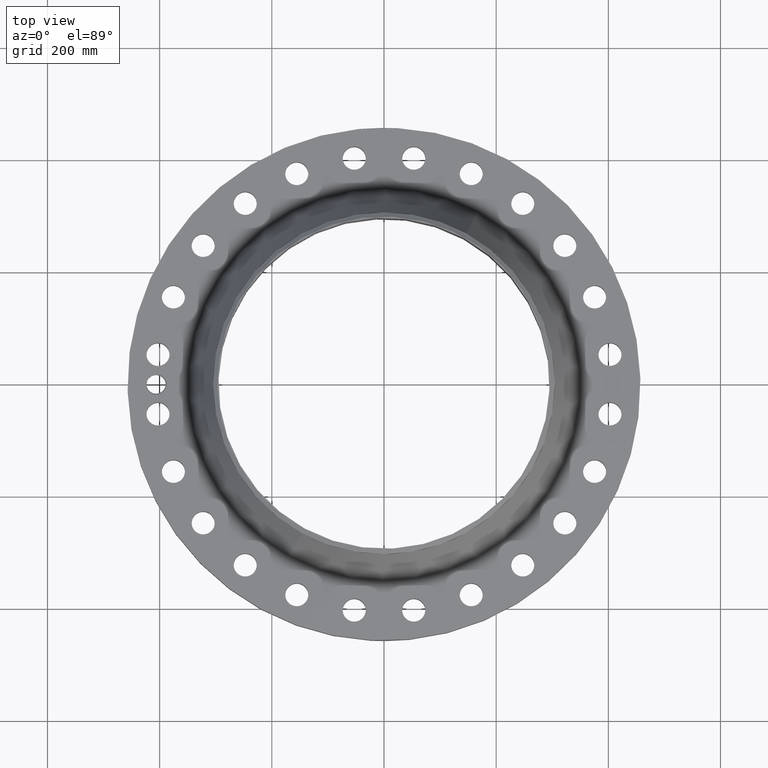
[diagram: clean part render]
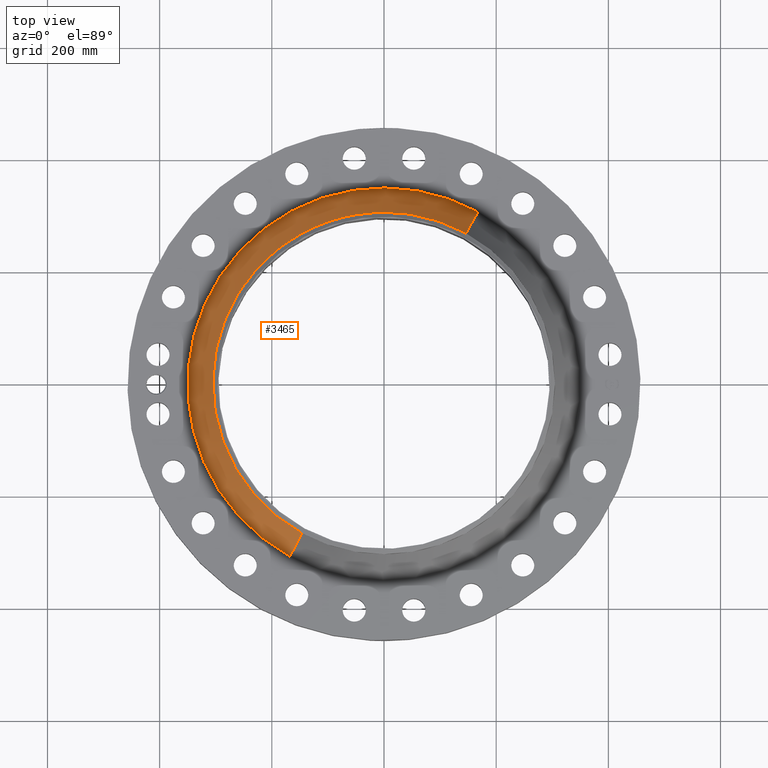
[diagram: same view with one face highlighted and labeled with its STEP entity id]
A machine part, top view. The second image highlights one B-rep face of the part: STEP entity #3465.
In plain terms, the highlighted conical surface has half-angle 27.984 deg.
Its self-contained STEP definition (entity closure, byte-faithful):
#2817=AXIS2_PLACEMENT_3D('Circle Axis2P3D',#2815,#2816,$) ;
#3426=AXIS2_PLACEMENT_3D('Cone Axis2P3D',#3423,#3424,#3425) ;
#3456=AXIS2_PLACEMENT_3D('Circle Axis2P3D',#3454,#3455,$) ;
#2793=CARTESIAN_POINT('Vertex',(6.6046413798,12.089714952,2.87369354348)) ;
#2800=CARTESIAN_POINT('Vertex',(-6.6046413798,-12.089714952,2.87369354348)) ;
#2815=CARTESIAN_POINT('Axis2P3D Location',(0.,0.,2.87369354348)) ;
#3423=CARTESIAN_POINT('Axis2P3D Location',(0.,0.,6.21645135496)) ;
#3428=CARTESIAN_POINT('Line Origine',(6.17887392154,11.3103528474,4.54507244922)) ;
#3432=CARTESIAN_POINT('Vertex',(5.75310646327,10.5309907427,6.21645135496)) ;
#3439=CARTESIAN_POINT('Vertex',(-5.75310646327,-10.5309907427,6.21645135496)) ;
#3442=CARTESIAN_POINT('Line Origine',(-6.17887392154,-11.3103528474,4.54507244922)) ;
#3454=CARTESIAN_POINT('Axis2P3D Location',(0.,0.,6.21645135496)) ;
#2816=DIRECTION('Axis2P3D Direction',(0.,0.,-0.0393700787402)) ;
#3424=DIRECTION('Axis2P3D Direction',(0.,0.,-0.0393700787402)) ;
#3425=DIRECTION('Axis2P3D XDirection',(-0.0188750212049,-0.0345504945626,0.)) ;
#3429=DIRECTION('Vector Direction',(0.00885654634092,0.0162117993338,-0.0347669706658)) ;
#3443=DIRECTION('Vector Direction',(-0.00885654634092,-0.0162117993338,-0.0347669706658)) ;
#3455=DIRECTION('Axis2P3D Direction',(0.,0.,-0.0393700787402)) ;
#3430=VECTOR('Line Direction',#3429,0.0393700787402) ;
#3444=VECTOR('Line Direction',#3443,0.0393700787402) ;
#3460=ORIENTED_EDGE('',*,*,#2819,.F.) ;
#3461=ORIENTED_EDGE('',*,*,#3446,.T.) ;
#3462=ORIENTED_EDGE('',*,*,#3458,.T.) ;
#3463=ORIENTED_EDGE('',*,*,#3434,.F.) ;
#3465=ADVANCED_FACE('PartBody',(#3464),#3427,.T.) ;
#2818=CIRCLE('generated circle',#2817,13.7761567709) ;
#3457=CIRCLE('generated circle',#3456,12.) ;
#3427=CONICAL_SURFACE('Cone',#3426,12.,0.488407833077) ;
#2819=EDGE_CURVE('',#2801,#2794,#2818,.T.) ;
#3434=EDGE_CURVE('',#2794,#3433,#3431,.F.) ;
#3446=EDGE_CURVE('',#2801,#3440,#3445,.F.) ;
#3458=EDGE_CURVE('',#3440,#3433,#3457,.T.) ;
#3459=EDGE_LOOP('',(#3460,#3461,#3462,#3463)) ;
#3464=FACE_OUTER_BOUND('',#3459,.T.) ;
#3431=LINE('Line',#3428,#3430) ;
#3445=LINE('Line',#3442,#3444) ;
#2794=VERTEX_POINT('',#2793) ;
#2801=VERTEX_POINT('',#2800) ;
#3433=VERTEX_POINT('',#3432) ;
#3440=VERTEX_POINT('',#3439) ;